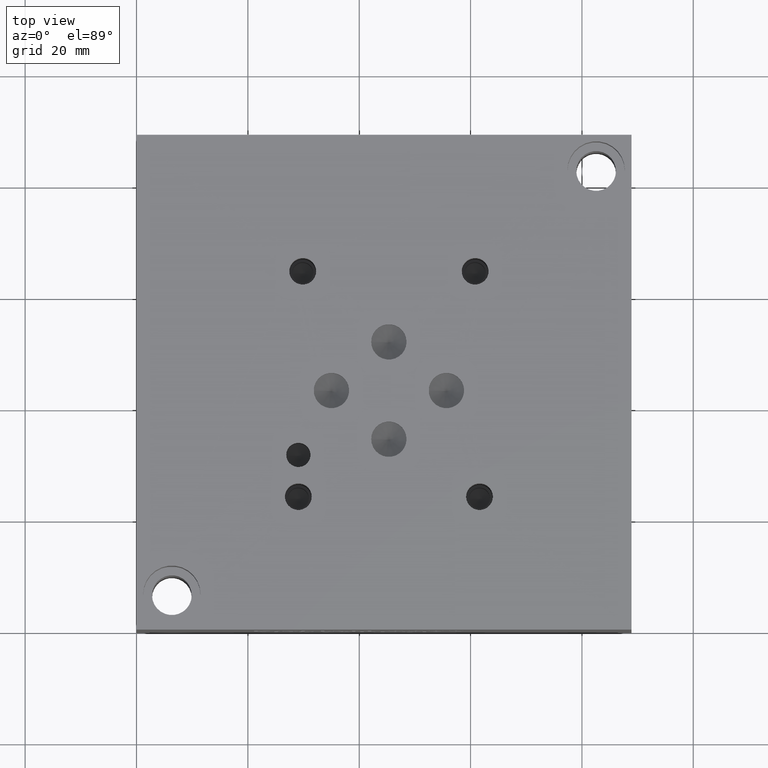
[diagram: clean part render]
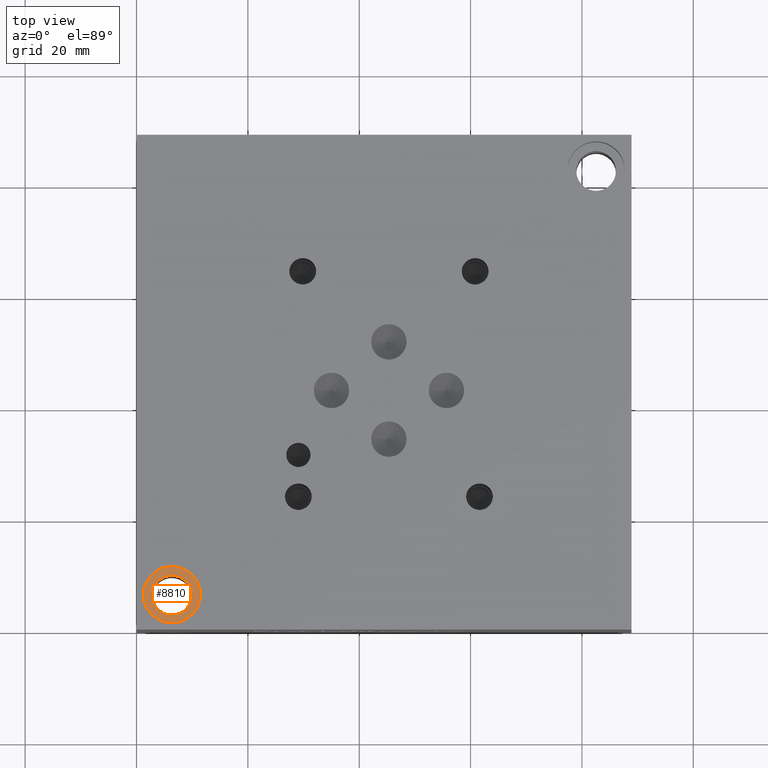
[diagram: same view with one face highlighted and labeled with its STEP entity id]
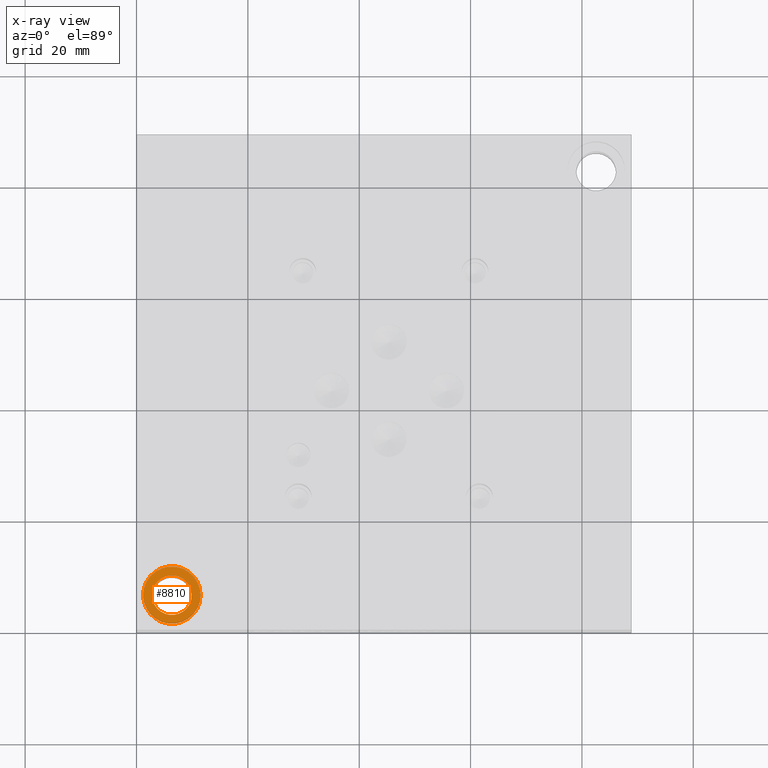
[diagram: x-ray of the same camera — body ghosted, the highlighted face saturated]
A machine part, top view. The second image highlights one B-rep face of the part: STEP entity #8810.
The next image is the same camera in x-ray: the body ghosted, the highlighted face saturated — about 0% of this face is hidden behind the body in this view.
In plain terms, the highlighted planar face has unit normal (0, 0, 1).
Its self-contained STEP definition (entity closure, byte-faithful):
#82=CIRCLE('',#9170,5.1562);
#83=CIRCLE('',#9171,5.1562);
#84=CIRCLE('',#9172,3.5687);
#187=FACE_BOUND('',#1389,.T.);
#469=PLANE('',#9169);
#892=FACE_OUTER_BOUND('',#1388,.T.);
#1388=EDGE_LOOP('',(#7692,#7693));
#1389=EDGE_LOOP('',(#7694));
#4179=VERTEX_POINT('',#14963);
#4180=VERTEX_POINT('',#14964);
#4181=VERTEX_POINT('',#14967);
#5371=EDGE_CURVE('',#4179,#4180,#82,.T.);
#5372=EDGE_CURVE('',#4180,#4179,#83,.T.);
#5373=EDGE_CURVE('',#4181,#4181,#84,.T.);
#7692=ORIENTED_EDGE('',*,*,#5371,.T.);
#7693=ORIENTED_EDGE('',*,*,#5372,.T.);
#7694=ORIENTED_EDGE('',*,*,#5373,.F.);
#8810=ADVANCED_FACE('',(#892,#187),#469,.T.);
#9169=AXIS2_PLACEMENT_3D('',#14962,#10706,#10707);
#9170=AXIS2_PLACEMENT_3D('',#14965,#10708,#10709);
#9171=AXIS2_PLACEMENT_3D('',#14966,#10710,#10711);
#9172=AXIS2_PLACEMENT_3D('',#14968,#10712,#10713);
#10706=DIRECTION('center_axis',(0.,0.,1.));
#10707=DIRECTION('ref_axis',(1.,0.,0.));
#10708=DIRECTION('center_axis',(0.,0.,1.));
#10709=DIRECTION('ref_axis',(1.,0.,0.));
#10710=DIRECTION('center_axis',(0.,0.,1.));
#10711=DIRECTION('ref_axis',(1.,0.,0.));
#10712=DIRECTION('center_axis',(0.,0.,1.));
#10713=DIRECTION('ref_axis',(1.,0.,0.));
#14962=CARTESIAN_POINT('Origin',(6.35,6.35,28.448));
#14963=CARTESIAN_POINT('',(11.5062,6.35,28.448));
#14964=CARTESIAN_POINT('',(1.1938,6.35,28.448));
#14965=CARTESIAN_POINT('Origin',(6.35,6.35,28.448));
#14966=CARTESIAN_POINT('Origin',(6.35,6.35,28.448));
#14967=CARTESIAN_POINT('',(2.7813,6.35,28.448));
#14968=CARTESIAN_POINT('Origin',(6.35,6.35,28.448));